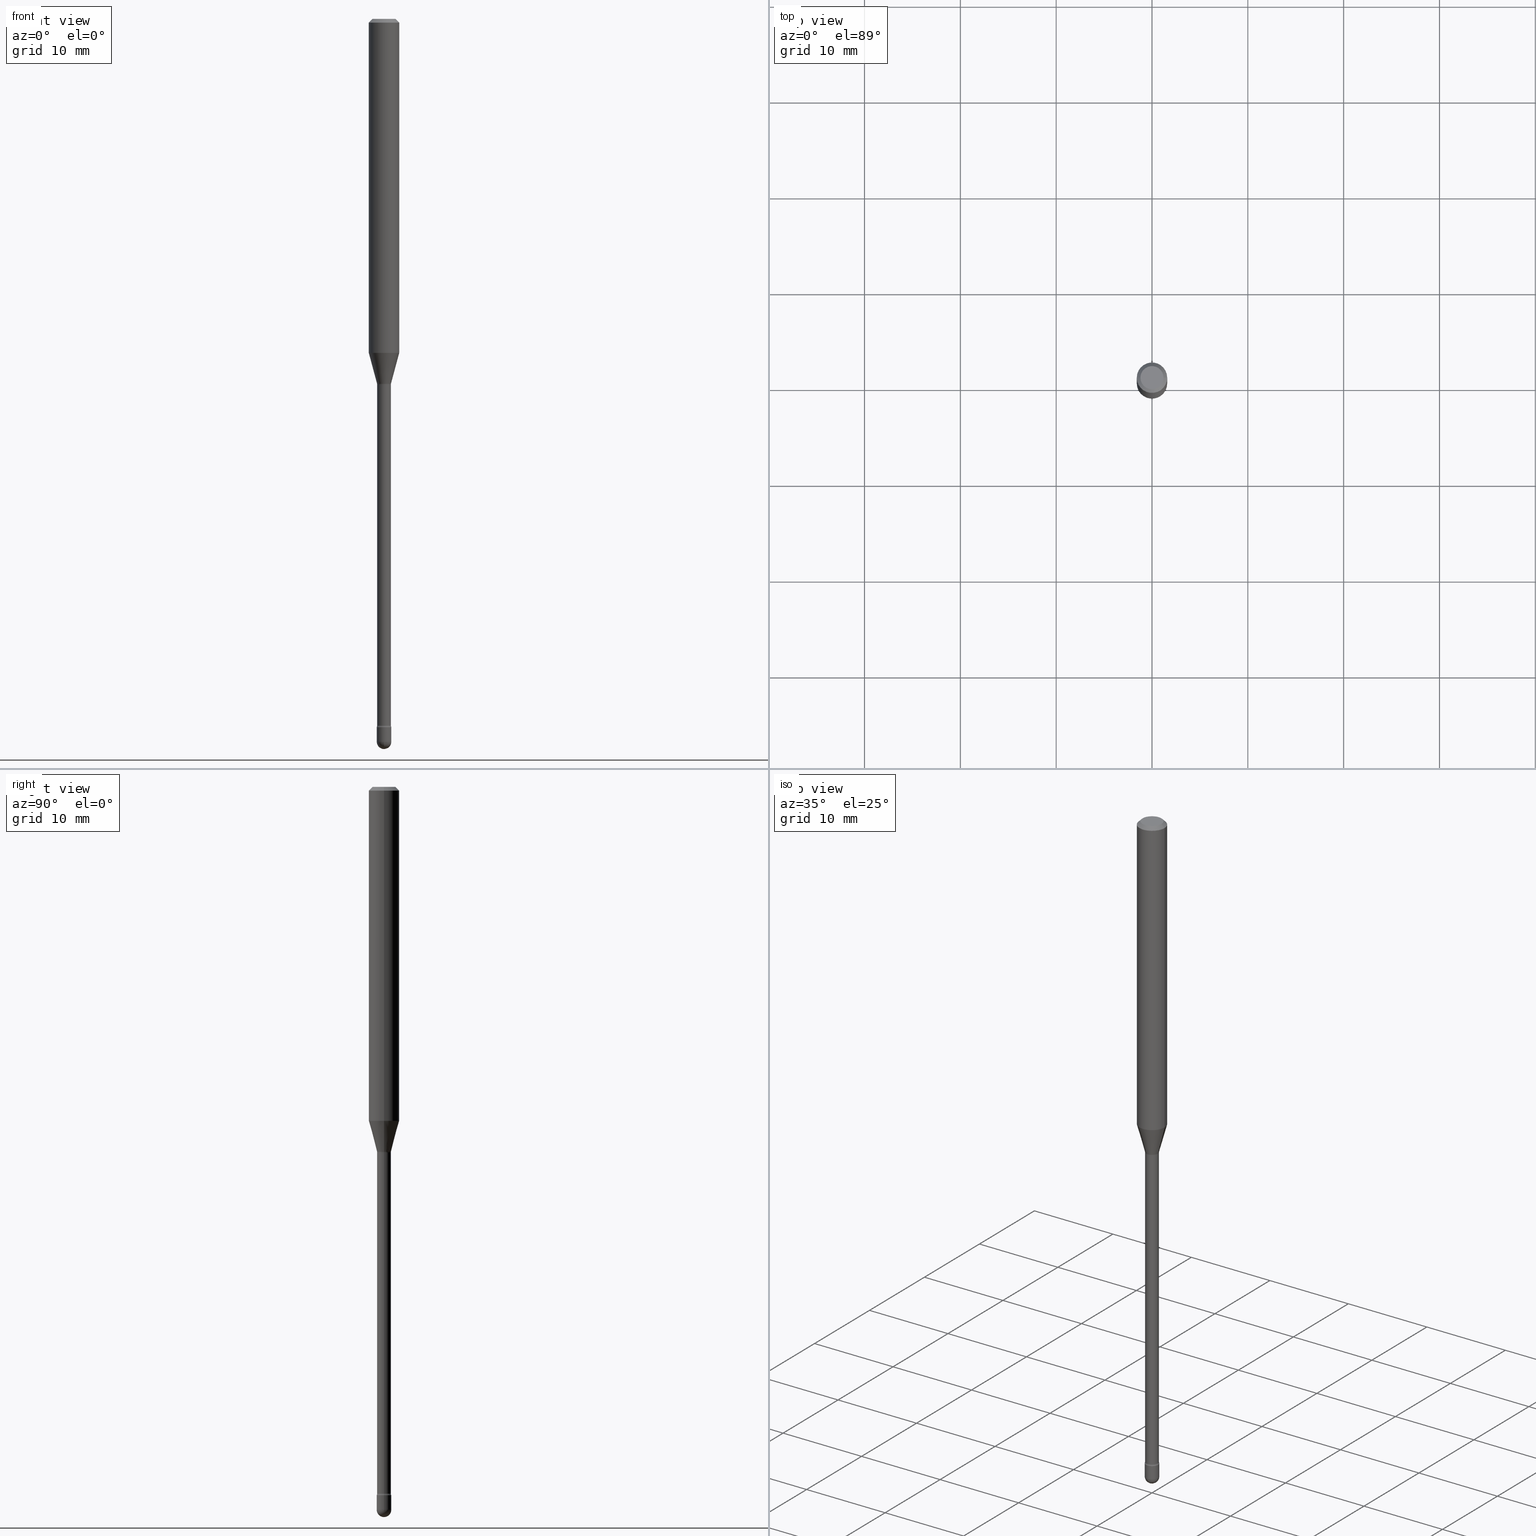
[diagram: canonical four-view strip — front | top / right | iso, engineering-drawing reading convention]
A machine part, canonical four-view strip (front | top / right | iso — engineering-drawing reading convention). The complete STEP part file that produces these views, byte-faithful:
ISO-10303-21;
HEADER;
FILE_DESCRIPTION (( 'STEP AP203' ),
    '1' );
FILE_NAME ('09493.STEP',
    '2024-04-09T23:50:04',
    ( '' ),
    ( '' ),
    'SwSTEP 2.0',
    'SolidWorks 2023',
    '' );
FILE_SCHEMA (( 'CONFIG_CONTROL_DESIGN' ));
ENDSEC;

DATA;
#1 = DATE_TIME_ROLE ( 'creation_date' ) ;
#2 = ADVANCED_FACE ( 'NONE', ( #346 ), #519, .T. ) ;
#3 = ORIENTED_EDGE ( 'NONE', *, *, #296, .F. ) ;
#4 = COORDINATED_UNIVERSAL_TIME_OFFSET ( 5, 0, .BEHIND. ) ;
#5 = CARTESIAN_POINT ( 'NONE',  ( -1.169113584055446105E-44, 1.669184350826100908E-30, 4.780733988912460139E-16 ) ) ;
#6 = DIRECTION ( 'NONE',  ( 0.000000000000000000, 0.000000000000000000, 1.000000000000000000 ) ) ;
#7 = LOCAL_TIME ( 19, 50, 4.000000000000000000, #352 ) ;
#8 = CIRCLE ( 'NONE', #225, 0.02819999999999999590 ) ;
#9 = CARTESIAN_POINT ( 'NONE',  ( 2.023552857353652888E-45, -2.889097183224559242E-31, -8.274703207154537794E-17 ) ) ;
#10 = DATE_AND_TIME ( #312, #106 ) ;
#11 = CYLINDRICAL_SURFACE ( 'NONE', #300, 0.02820000000000010693 ) ;
#12 = EDGE_CURVE ( 'NONE', #419, #128, #482, .T. ) ;
#13 = VECTOR ( 'NONE', #485, 39.37007874015747433 ) ;
#14 = APPROVAL_PERSON_ORGANIZATION ( #479, #63, #401 ) ;
#15 = CARTESIAN_POINT ( 'NONE',  ( 7.263042354369856275E-29, -1.036969957636414298E-14, -2.970000000000000195 ) ) ;
#16 = LINE ( 'NONE', #408, #407 ) ;
#17 = CARTESIAN_POINT ( 'NONE',  ( -2.131628207279573248E-16, -0.03000000000001035866, -2.970000000000000195 ) ) ;
#18 = ADVANCED_FACE ( 'NONE', ( #143 ), #37, .F. ) ;
#19 = CARTESIAN_POINT ( 'NONE',  ( 0.04749999999999999362, -4.035134999187581581E-16, -8.274703207154280181E-17 ) ) ;
#20 = CARTESIAN_POINT ( 'NONE',  ( -0.03000000000000000583, -1.005179231547081937E-14, -2.970000000000000195 ) ) ;
#21 = DIRECTION ( 'NONE',  ( 1.000000000000000000, -6.982962677686268288E-15, 0.000000000000000000 ) ) ;
#22 = LOCAL_TIME ( 19, 50, 4.000000000000000000, #180 ) ;
#23 = DIRECTION ( 'NONE',  ( -2.445468806185136597E-29, 3.491481338843145583E-15, 1.000000000000000000 ) ) ;
#24 = AXIS2_PLACEMENT_3D ( 'NONE', #209, #297, #75 ) ;
#25 = ORIENTED_EDGE ( 'NONE', *, *, #296, .T. ) ;
#26 = AXIS2_PLACEMENT_3D ( 'NONE', #365, #489, #445 ) ;
#27 = CARTESIAN_POINT ( 'NONE',  ( 2.094888803306591418E-16, 0.02999999999998984035, -2.910000000000000586 ) ) ;
#28 = CARTESIAN_POINT ( 'NONE',  ( 3.355160354805540645E-29, -4.790279777031446452E-15, -1.371990657300387939 ) ) ;
#29 = ORIENTED_EDGE ( 'NONE', *, *, #509, .T. ) ;
#30 = CARTESIAN_POINT ( 'NONE',  ( 3.668203209277725232E-31, -5.237222008264747365E-17, -0.01500000000000008271 ) ) ;
#31 = DIRECTION ( 'NONE',  ( 6.982962677686265922E-15, 1.000000000000000000, 0.000000000000000000 ) ) ;
#32 = VERTEX_POINT ( 'NONE', #20 ) ;
#33 = DIMENSIONAL_EXPONENTS ( 1.000000000000000000, 0.000000000000000000, 0.000000000000000000, 0.000000000000000000, 0.000000000000000000, 0.000000000000000000, 0.000000000000000000 ) ;
#34 = DIRECTION ( 'NONE',  ( -2.438088387897960049E-29, 3.491481338843145188E-15, 1.000000000000000000 ) ) ;
#35 = EDGE_CURVE ( 'NONE', #128, #419, #107, .T. ) ;
#36 = ORIENTED_EDGE ( 'NONE', *, *, #429, .T. ) ;
#37 = TOROIDAL_SURFACE ( 'NONE', #205, 0.04320000000000000229, 0.01500000000000002720 ) ;
#38 = CIRCLE ( 'NONE', #514, 0.02819999999999999590 ) ;
#39 = DIRECTION ( 'NONE',  ( -2.445468806185136877E-29, 3.491481338843145188E-15, 1.000000000000000000 ) ) ;
#40 = DIRECTION ( 'NONE',  ( -2.445468806185136597E-29, 3.491481338843145583E-15, 1.000000000000000000 ) ) ;
#41 = EDGE_LOOP ( 'NONE', ( #151, #501, #510, #551 ) ) ;
#42 = ADVANCED_FACE ( 'NONE', ( #109 ), #357, .T. ) ;
#43 = CARTESIAN_POINT ( 'NONE',  ( -0.06250000000000000000, -1.977236788706983558E-15, -0.01500000000000008271 ) ) ;
#44 = ORIENTED_EDGE ( 'NONE', *, *, #144, .T. ) ;
#45 = EDGE_CURVE ( 'NONE', #469, #124, #466, .T. ) ;
#46 = FACE_OUTER_BOUND ( 'NONE', #179, .T. ) ;
#47 = APPROVAL_PERSON_ORGANIZATION ( #132, #437, #432 ) ;
#48 = CALENDAR_DATE ( 2024, 9, 4 ) ;
#49 = AXIS2_PLACEMENT_3D ( 'NONE', #425, #550, #71 ) ;
#50 = EDGE_CURVE ( 'NONE', #419, #172, #483, .T. ) ;
#51 = CALENDAR_DATE ( 2024, 9, 4 ) ;
#52 = ORIENTED_EDGE ( 'NONE', *, *, #228, .F. ) ;
#53 = ADVANCED_BREP_SHAPE_REPRESENTATION ( '09493', ( #515, #511, #358 ), #288 ) ;
#54 = PERSON_AND_ORGANIZATION ( #379, #262 ) ;
#55 = ORIENTED_EDGE ( 'NONE', *, *, #35, .F. ) ;
#56 = DATE_TIME_ROLE ( 'classification_date' ) ;
#57 = CIRCLE ( 'NONE', #533, 0.03000000000000000583 ) ;
#58 = DIRECTION ( 'NONE',  ( 1.000000000000000000, -6.982962677686274599E-15, 4.883557194083115143E-29 ) ) ;
#59 = ADVANCED_FACE ( 'NONE', ( #61 ), #177, .F. ) ;
#60 = FACE_OUTER_BOUND ( 'NONE', #220, .T. ) ;
#61 = FACE_OUTER_BOUND ( 'NONE', #195, .T. ) ;
#62 = DIRECTION ( 'NONE',  ( 1.000000000000000000, -6.982962677686268288E-15, 0.000000000000000000 ) ) ;
#63 = APPROVAL ( #267, 'UNSPECIFIED' ) ;
#64 = CIRCLE ( 'NONE', #377, 0.02999999999999997807 ) ;
#65 = DIRECTION ( 'NONE',  ( 1.000000000000000000, -6.982962677686258033E-15, 0.000000000000000000 ) ) ;
#66 = DIRECTION ( 'NONE',  ( 1.000000000000000000, -6.982962677686266711E-15, 0.000000000000000000 ) ) ;
#67 = DIRECTION ( 'NONE',  ( -2.445468806185136597E-29, 3.491481338843145583E-15, 1.000000000000000000 ) ) ;
#68 = LINE ( 'NONE', #277, #542 ) ;
#69 = DIRECTION ( 'NONE',  ( 1.000000000000000000, -6.982962677686262766E-15, 0.000000000000000000 ) ) ;
#70 = FACE_OUTER_BOUND ( 'NONE', #167, .T. ) ;
#71 = DIRECTION ( 'NONE',  ( 1.000000000000000000, -6.982962677686280121E-15, 0.000000000000000000 ) ) ;
#72 = CIRCLE ( 'NONE', #456, 0.02820000000000021795 ) ;
#73 = EDGE_LOOP ( 'NONE', ( #265, #36 ) ) ;
#74 = CIRCLE ( 'NONE', #84, 0.02999999999999999889 ) ;
#75 = DIRECTION ( 'NONE',  ( -1.000000000000000000, 6.982962677686265922E-15, -4.876176775795935793E-29 ) ) ;
#76 = EDGE_LOOP ( 'NONE', ( #330, #459, #212, #476 ) ) ;
#77 = CARTESIAN_POINT ( 'NONE',  ( -0.06250000000000000000, 4.440892098500642925E-16, 4.780733988912429571E-16 ) ) ;
#78 = ADVANCED_FACE ( 'NONE', ( #535 ), #492, .T. ) ;
#79 = DIRECTION ( 'NONE',  ( -2.445468806185136597E-29, 3.491481338843145583E-15, 1.000000000000000000 ) ) ;
#80 = VERTEX_POINT ( 'NONE', #531 ) ;
#81 = DIRECTION ( 'NONE',  ( -2.445468806185136597E-29, 3.491481338843145583E-15, 1.000000000000000000 ) ) ;
#82 = EDGE_CURVE ( 'NONE', #116, #303, #140, .T. ) ;
#83 = ORIENTED_EDGE ( 'NONE', *, *, #536, .F. ) ;
#84 = AXIS2_PLACEMENT_3D ( 'NONE', #463, #423, #340 ) ;
#85 = CARTESIAN_POINT ( 'NONE',  ( -1.169113584055446105E-44, 1.669184350826100908E-30, 4.780733988912460139E-16 ) ) ;
#86 = ORIENTED_EDGE ( 'NONE', *, *, #402, .F. ) ;
#87 = DIRECTION ( 'NONE',  ( 1.000000000000000000, -6.982962677686266711E-15, 0.000000000000000000 ) ) ;
#88 = ORIENTED_EDGE ( 'NONE', *, *, #564, .F. ) ;
#89 = FACE_OUTER_BOUND ( 'NONE', #119, .T. ) ;
#90 = EDGE_LOOP ( 'NONE', ( #527, #517, #507, #374, #559 ) ) ;
#91 = AXIS2_PLACEMENT_3D ( 'NONE', #458, #79, #498 ) ;
#92 = CC_DESIGN_APPROVAL ( #63, ( #495 ) ) ;
#93 = VERTEX_POINT ( 'NONE', #17 ) ;
#94 = ORIENTED_EDGE ( 'NONE', *, *, #392, .T. ) ;
#95 = CC_DESIGN_DATE_AND_TIME_ASSIGNMENT ( #10, #1, ( #495 ) ) ;
#96 = CARTESIAN_POINT ( 'NONE',  ( 0.02871111260566397427, -5.431050641611305641E-15, -1.498092501787273267 ) ) ;
#97 = PERSON_AND_ORGANIZATION ( #379, #262 ) ;
#98 = AXIS2_PLACEMENT_3D ( 'NONE', #185, #413, #359 ) ;
#99 = DIRECTION ( 'NONE',  ( 1.000000000000000000, -6.982962677686266711E-15, 0.000000000000000000 ) ) ;
#100 = SECURITY_CLASSIFICATION_LEVEL ( 'unclassified' ) ;
#101 = DIRECTION ( 'NONE',  ( 1.000000000000000000, -6.982962677686267499E-15, 4.884662768193073002E-29 ) ) ;
#102 = EDGE_CURVE ( 'NONE', #32, #93, #215, .T. ) ;
#103 = DIRECTION ( 'NONE',  ( -2.445468806185136597E-29, 3.491481338843145583E-15, 1.000000000000000000 ) ) ;
#104 = CARTESIAN_POINT ( 'NONE',  ( 0.02871111260566397427, -5.431050641611305641E-15, -1.498092501787273267 ) ) ;
#105 = FACE_OUTER_BOUND ( 'NONE', #566, .T. ) ;
#106 = LOCAL_TIME ( 19, 50, 4.000000000000000000, #530 ) ;
#107 = CIRCLE ( 'NONE', #192, 0.04749999999999999362 ) ;
#108 = AXIS2_PLACEMENT_3D ( 'NONE', #544, #161, #361 ) ;
#109 = FACE_OUTER_BOUND ( 'NONE', #76, .T. ) ;
#110 = DIRECTION ( 'NONE',  ( -2.445468806185136597E-29, 3.491481338843145583E-15, 1.000000000000000000 ) ) ;
#111 = DIRECTION ( 'NONE',  ( 1.000000000000000000, -6.982962677686266711E-15, 0.000000000000000000 ) ) ;
#112 = CARTESIAN_POINT ( 'NONE',  ( -0.04320000000000000229, -4.937162479994433294E-15, -1.501974787463811190 ) ) ;
#113 = CARTESIAN_POINT ( 'NONE',  ( 7.263042354369856275E-29, -1.036969957636414298E-14, -2.970000000000000195 ) ) ;
#114 = EDGE_LOOP ( 'NONE', ( #455, #55, #426, #545 ) ) ;
#115 = CIRCLE ( 'NONE', #91, 0.03000000000000000583 ) ;
#116 = VERTEX_POINT ( 'NONE', #96 ) ;
#117 = DIRECTION ( 'NONE',  ( 1.000000000000000000, -6.982962677686269866E-15, 4.883557194083114583E-29 ) ) ;
#118 = CARTESIAN_POINT ( 'NONE',  ( -0.06250000000000000000, 3.840629472727441958E-16, -0.01500000000000008271 ) ) ;
#119 = EDGE_LOOP ( 'NONE', ( #380, #522, #304, #165 ) ) ;
#120 = CARTESIAN_POINT ( 'NONE',  ( 0.02820000000000010693, -1.969195475107518148E-16, 4.780733988912474930E-16 ) ) ;
#121 = EDGE_LOOP ( 'NONE', ( #342, #371, #29, #248, #548 ) ) ;
#122 = DIRECTION ( 'NONE',  ( 1.000000000000000000, -6.982962677686280121E-15, 0.000000000000000000 ) ) ;
#123 = SECURITY_CLASSIFICATION ( '', '', #100 ) ;
#124 = VERTEX_POINT ( 'NONE', #444 ) ;
#125 = AXIS2_PLACEMENT_3D ( 'NONE', #508, #420, #122 ) ;
#126 = DIRECTION ( 'NONE',  ( 1.000000000000000000, -6.982962677686255667E-15, 0.000000000000000000 ) ) ;
#127 = CC_DESIGN_PERSON_AND_ORGANIZATION_ASSIGNMENT ( #97, #131, ( #495 ) ) ;
#128 = VERTEX_POINT ( 'NONE', #230 ) ;
#129 = LINE ( 'NONE', #120, #397 ) ;
#130 = EDGE_LOOP ( 'NONE', ( #333, #197, #307, #310 ) ) ;
#131 = PERSON_AND_ORGANIZATION_ROLE ( 'creator' ) ;
#132 = PERSON_AND_ORGANIZATION ( #379, #262 ) ;
#133 = CIRCLE ( 'NONE', #158, 0.01499999999999995087 ) ;
#134 = AXIS2_PLACEMENT_3D ( 'NONE', #249, #295, #292 ) ;
#135 = VERTEX_POINT ( 'NONE', #442 ) ;
#136 = PERSON_AND_ORGANIZATION ( #379, #262 ) ;
#137 = ADVANCED_FACE ( 'NONE', ( #60 ), #11, .T. ) ;
#138 = VERTEX_POINT ( 'NONE', #187 ) ;
#139 =( NAMED_UNIT ( * ) PLANE_ANGLE_UNIT ( ) SI_UNIT ( $, .RADIAN. ) );
#140 = LINE ( 'NONE', #104, #13 ) ;
#141 = CALENDAR_DATE ( 2024, 9, 4 ) ;
#142 = AXIS2_PLACEMENT_3D ( 'NONE', #112, #537, #283 ) ;
#143 = FACE_OUTER_BOUND ( 'NONE', #130, .T. ) ;
#144 = EDGE_CURVE ( 'NONE', #201, #138, #268, .T. ) ;
#145 = CARTESIAN_POINT ( 'NONE',  ( -0.02820000000000021795, -9.941005046784985049E-15, -2.902875394747778337 ) ) ;
#146 = CLOSED_SHELL ( 'NONE', ( #539, #305, #556, #42, #243 ) ) ;
#147 = AXIS2_PLACEMENT_3D ( 'NONE', #453, #543, #62 ) ;
#148 = DIRECTION ( 'NONE',  ( 2.445468806185136597E-29, -3.491481338843145583E-15, -1.000000000000000000 ) ) ;
#149 = DIRECTION ( 'NONE',  ( -2.445468806185136877E-29, 3.491481338843145188E-15, 1.000000000000000000 ) ) ;
#150 = EDGE_CURVE ( 'NONE', #169, #254, #72, .T. ) ;
#151 = ORIENTED_EDGE ( 'NONE', *, *, #516, .F. ) ;
#152 = CARTESIAN_POINT ( 'NONE',  ( 0.02999999999999999889, -1.036969957636414298E-14, -2.910000000000000586 ) ) ;
#153 = EDGE_CURVE ( 'NONE', #480, #438, #235, .T. ) ;
#154 = FACE_OUTER_BOUND ( 'NONE', #291, .T. ) ;
#155 = ORIENTED_EDGE ( 'NONE', *, *, #404, .F. ) ;
#156 = CARTESIAN_POINT ( 'NONE',  ( 0.02819999999999999590, -5.441036489353549392E-15, -1.501974787463811190 ) ) ;
#157 = CARTESIAN_POINT ( 'NONE',  ( 0.04320000000000016882, -1.043699925742484396E-14, -2.902875394747778337 ) ) ;
#158 = AXIS2_PLACEMENT_3D ( 'NONE', #157, #558, #164 ) ;
#159 = AXIS2_PLACEMENT_3D ( 'NONE', #494, #191, #457 ) ;
#160 = ORIENTED_EDGE ( 'NONE', *, *, #497, .T. ) ;
#161 = DIRECTION ( 'NONE',  ( 7.105427357601001859E-15, 1.000000000000000000, -3.491481338843145583E-15 ) ) ;
#162 = VERTEX_POINT ( 'NONE', #538 ) ;
#163 = CYLINDRICAL_SURFACE ( 'NONE', #326, 0.02820000000000010693 ) ;
#164 = DIRECTION ( 'NONE',  ( 1.000000000000000000, -6.982962677686291165E-15, 0.000000000000000000 ) ) ;
#165 = ORIENTED_EDGE ( 'NONE', *, *, #264, .F. ) ;
#166 = DIRECTION ( 'NONE',  ( -2.445468806185136877E-29, 3.491481338843145188E-15, 1.000000000000000000 ) ) ;
#167 = EDGE_LOOP ( 'NONE', ( #436, #337 ) ) ;
#168 = TOROIDAL_SURFACE ( 'NONE', #186, 0.04320000000000000229, 0.01500000000000002720 ) ;
#169 = VERTEX_POINT ( 'NONE', #145 ) ;
#170 = APPROVAL_STATUS ( 'not_yet_approved' ) ;
#171 = EDGE_CURVE ( 'NONE', #162, #32, #57, .T. ) ;
#172 = VERTEX_POINT ( 'NONE', #290 ) ;
#173 = APPROVAL_DATE_TIME ( #391, #286 ) ;
#174 = ORIENTED_EDGE ( 'NONE', *, *, #279, .F. ) ;
#175 = DIRECTION ( 'NONE',  ( 1.000000000000000000, 0.000000000000000000, 0.000000000000000000 ) ) ;
#176 = CC_DESIGN_PERSON_AND_ORGANIZATION_ASSIGNMENT ( #347, #439, ( #275 ) ) ;
#177 = TOROIDAL_SURFACE ( 'NONE', #525, 0.04320000000000016882, 0.01499999999999995087 ) ;
#178 = AXIS2_PLACEMENT_3D ( 'NONE', #27, #546, #233 ) ;
#179 = EDGE_LOOP ( 'NONE', ( #294, #339, #160, #3 ) ) ;
#180 = COORDINATED_UNIVERSAL_TIME_OFFSET ( 5, 0, .BEHIND. ) ;
#181 = DIRECTION ( 'NONE',  ( 1.000000000000000000, -6.982962677686269866E-15, 4.883557194083114583E-29 ) ) ;
#182 = MECHANICAL_CONTEXT ( 'NONE', #259, 'mechanical' ) ;
#183 = DIRECTION ( 'NONE',  ( 1.000000000000000000, -6.982962677686267499E-15, 4.947382444955185591E-29 ) ) ;
#184 = CIRCLE ( 'NONE', #475, 0.06250000000000000000 ) ;
#185 = CARTESIAN_POINT ( 'NONE',  ( -1.169113584055446105E-44, 1.669184350826100908E-30, 4.780733988912460139E-16 ) ) ;
#186 = AXIS2_PLACEMENT_3D ( 'NONE', #384, #213, #117 ) ;
#187 = CARTESIAN_POINT ( 'NONE',  ( -0.06250000000000000000, -4.346190567181383047E-15, -1.371990657300387939 ) ) ;
#188 = DIRECTION ( 'NONE',  ( -2.445468806185136877E-29, 3.491481338843145188E-15, 1.000000000000000000 ) ) ;
#189 = EDGE_CURVE ( 'NONE', #116, #201, #260, .T. ) ;
#190 = DIRECTION ( 'NONE',  ( -2.445468806185136597E-29, 3.491481338843145583E-15, 1.000000000000000000 ) ) ;
#191 = DIRECTION ( 'NONE',  ( -2.445468806185136597E-29, 3.491481338843145583E-15, 1.000000000000000000 ) ) ;
#192 = AXIS2_PLACEMENT_3D ( 'NONE', #400, #190, #101 ) ;
#193 = AXIS2_PLACEMENT_3D ( 'NONE', #460, #81, #255 ) ;
#194 = DIRECTION ( 'NONE',  ( 1.000000000000000000, -6.982962677686262766E-15, 0.000000000000000000 ) ) ;
#195 = EDGE_LOOP ( 'NONE', ( #207, #415, #422, #472 ) ) ;
#196 = CARTESIAN_POINT ( 'NONE',  ( 3.673032490419300829E-29, -5.244116941842796689E-15, -1.501974787463811190 ) ) ;
#197 = ORIENTED_EDGE ( 'NONE', *, *, #189, .F. ) ;
#198 = DIRECTION ( 'NONE',  ( 1.000000000000000000, -6.982962677686266711E-15, 4.876176775795935793E-29 ) ) ;
#199 = CARTESIAN_POINT ( 'NONE',  ( 0.06250000000000000000, -5.226714944386837332E-15, -1.371990657300387939 ) ) ;
#200 = EDGE_CURVE ( 'NONE', #201, #116, #552, .T. ) ;
#201 = VERTEX_POINT ( 'NONE', #414 ) ;
#202 = CARTESIAN_POINT ( 'NONE',  ( 0.04320000000000000229, -5.545780929518843550E-15, -1.501974787463811190 ) ) ;
#203 = APPROVAL_PERSON_ORGANIZATION ( #477, #286, #224 ) ;
#204 = DIRECTION ( 'NONE',  ( -2.445468806185136597E-29, 3.491481338843145583E-15, 1.000000000000000000 ) ) ;
#205 = AXIS2_PLACEMENT_3D ( 'NONE', #226, #411, #181 ) ;
#206 = AXIS2_PLACEMENT_3D ( 'NONE', #560, #338, #198 ) ;
#207 = ORIENTED_EDGE ( 'NONE', *, *, #320, .F. ) ;
#208 = DIRECTION ( 'NONE',  ( -1.000000000000000000, 6.982962677686266711E-15, 0.000000000000000000 ) ) ;
#209 = CARTESIAN_POINT ( 'NONE',  ( 3.316907271900976096E-16, 0.04749999999999999362, 3.181781981480094004E-17 ) ) ;
#210 = ORIENTED_EDGE ( 'NONE', *, *, #421, .T. ) ;
#211 = CARTESIAN_POINT ( 'NONE',  ( 7.116314225998749245E-29, -1.016021069603355467E-14, -2.910000000000000586 ) ) ;
#212 = ORIENTED_EDGE ( 'NONE', *, *, #214, .F. ) ;
#213 = DIRECTION ( 'NONE',  ( -2.445468806185136597E-29, 3.491481338843145583E-15, 1.000000000000000000 ) ) ;
#214 = EDGE_CURVE ( 'NONE', #480, #162, #115, .T. ) ;
#215 = CIRCLE ( 'NONE', #541, 0.03000000000000000583 ) ;
#216 = EDGE_LOOP ( 'NONE', ( #417, #431, #353, #393 ) ) ;
#217 = APPROVAL_DATE_TIME ( #394, #63 ) ;
#218 = ORIENTED_EDGE ( 'NONE', *, *, #412, .T. ) ;
#219 = PERSON_AND_ORGANIZATION ( #379, #262 ) ;
#220 = EDGE_LOOP ( 'NONE', ( #218, #210, #86, #241 ) ) ;
#221 = CARTESIAN_POINT ( 'NONE',  ( 0.000000000000000000, 0.000000000000000000, 0.000000000000000000 ) ) ;
#222 = AXIS2_PLACEMENT_3D ( 'NONE', #30, #343, #208 ) ;
#223 = ORIENTED_EDGE ( 'NONE', *, *, #50, .T. ) ;
#224 = APPROVAL_ROLE ( '' ) ;
#225 = AXIS2_PLACEMENT_3D ( 'NONE', #451, #103, #325 ) ;
#226 = CARTESIAN_POINT ( 'NONE',  ( 3.673032490419300829E-29, -5.244116941842796689E-15, -1.501974787463811190 ) ) ;
#227 = APPLICATION_PROTOCOL_DEFINITION ( 'international standard', 'config_control_design', 1994, #289 ) ;
#228 = EDGE_CURVE ( 'NONE', #303, #138, #306, .T. ) ;
#229 = DIRECTION ( 'NONE',  ( 1.000000000000000000, -6.982962677686268288E-15, 0.000000000000000000 ) ) ;
#230 = CARTESIAN_POINT ( 'NONE',  ( -0.04749999999999999362, 3.578768372314208041E-16, -8.274703207154778150E-17 ) ) ;
#231 = PRODUCT_DEFINITION_FORMATION_WITH_SPECIFIED_SOURCE ( 'ANY', '', #275, .NOT_KNOWN. ) ;
#232 = VECTOR ( 'NONE', #367, 39.37007874015748143 ) ;
#233 = DIRECTION ( 'NONE',  ( 1.000000000000000000, -6.982962677686265922E-15, 4.876176775795935793E-29 ) ) ;
#234 = CIRCLE ( 'NONE', #142, 0.01500000000000002720 ) ;
#235 = LINE ( 'NONE', #409, #532 ) ;
#236 = CC_DESIGN_DATE_AND_TIME_ASSIGNMENT ( #389, #56, ( #123 ) ) ;
#237 = DIRECTION ( 'NONE',  ( -2.445468806185136597E-29, 3.491481338843145583E-15, 1.000000000000000000 ) ) ;
#238 = FACE_OUTER_BOUND ( 'NONE', #121, .T. ) ;
#239 = DIRECTION ( 'NONE',  ( -2.445468806185136877E-29, 3.491481338843145188E-15, 1.000000000000000000 ) ) ;
#240 = AXIS2_PLACEMENT_3D ( 'NONE', #317, #280, #403 ) ;
#241 = ORIENTED_EDGE ( 'NONE', *, *, #497, .F. ) ;
#242 = FACE_OUTER_BOUND ( 'NONE', #256, .T. ) ;
#243 = ADVANCED_FACE ( 'NONE', ( #238 ), #252, .T. ) ;
#244 = DIRECTION ( 'NONE',  ( -2.445468806185136597E-29, 3.491481338843145583E-15, 1.000000000000000000 ) ) ;
#245 = VERTEX_POINT ( 'NONE', #373 ) ;
#246 = FACE_OUTER_BOUND ( 'NONE', #506, .T. ) ;
#247 = DIRECTION ( 'NONE',  ( 1.000000000000000000, -6.982962677686278543E-15, 0.000000000000000000 ) ) ;
#248 = ORIENTED_EDGE ( 'NONE', *, *, #153, .T. ) ;
#249 = CARTESIAN_POINT ( 'NONE',  ( 7.263042354369856275E-29, -1.036969957636414298E-14, -2.970000000000000195 ) ) ;
#250 = CC_DESIGN_APPROVAL ( #286, ( #123 ) ) ;
#251 = ADVANCED_FACE ( 'NONE', ( #332 ), #452, .F. ) ;
#252 = CYLINDRICAL_SURFACE ( 'NONE', #433, 0.03000000000000000583 ) ;
#253 = AXIS2_PLACEMENT_3D ( 'NONE', #281, #237, #21 ) ;
#254 = VERTEX_POINT ( 'NONE', #382 ) ;
#255 = DIRECTION ( 'NONE',  ( 1.000000000000000000, -6.982962677686266711E-15, 0.000000000000000000 ) ) ;
#256 = EDGE_LOOP ( 'NONE', ( #390, #388, #83, #155 ) ) ;
#257 = EDGE_CURVE ( 'NONE', #254, #469, #133, .T. ) ;
#258 = DIRECTION ( 'NONE',  ( -2.445468806185136597E-29, 3.491481338843145583E-15, 1.000000000000000000 ) ) ;
#259 = APPLICATION_CONTEXT ( 'configuration controlled 3d designs of mechanical parts and assemblies' ) ;
#260 = CIRCLE ( 'NONE', #287, 0.02871111260566397427 ) ;
#261 = ORIENTED_EDGE ( 'NONE', *, *, #200, .F. ) ;
#262 = ORGANIZATION ( 'UNSPECIFIED', 'UNSPECIFIED', '' ) ;
#263 = CALENDAR_DATE ( 2024, 9, 4 ) ;
#264 = EDGE_CURVE ( 'NONE', #138, #303, #184, .T. ) ;
#265 = ORIENTED_EDGE ( 'NONE', *, *, #370, .T. ) ;
#266 = ORIENTED_EDGE ( 'NONE', *, *, #189, .T. ) ;
#267 = APPROVAL_STATUS ( 'not_yet_approved' ) ;
#268 = LINE ( 'NONE', #362, #563 ) ;
#269 = VECTOR ( 'NONE', #319, 39.37007874015748143 ) ;
#270 = CIRCLE ( 'NONE', #253, 0.02999999999999999889 ) ;
#271 = DIRECTION ( 'NONE',  ( -2.445468806185136597E-29, 3.491481338843145583E-15, 1.000000000000000000 ) ) ;
#272 = DIRECTION ( 'NONE',  ( -2.445468806185136597E-29, 3.491481338843145583E-15, 1.000000000000000000 ) ) ;
#273 = EDGE_CURVE ( 'NONE', #128, #467, #496, .T. ) ;
#274 = CARTESIAN_POINT ( 'NONE',  ( 7.098891226098056422E-29, -1.013533526974879710E-14, -2.902875394747778337 ) ) ;
#275 = PRODUCT ( '09493', '09493', '', ( #182 ) ) ;
#276 = CARTESIAN_POINT ( 'NONE',  ( 7.098891226098056422E-29, -1.013533526974879710E-14, -2.902875394747778337 ) ) ;
#277 = CARTESIAN_POINT ( 'NONE',  ( -0.02820000000000010693, 2.003730514843506885E-16, 4.780733988912446334E-16 ) ) ;
#278 = CIRCLE ( 'NONE', #26, 0.02820000000000021795 ) ;
#279 = EDGE_CURVE ( 'NONE', #135, #162, #64, .T. ) ;
#280 = DIRECTION ( 'NONE',  ( -1.000000000000000000, 6.982962677686265922E-15, -4.883557194083112340E-29 ) ) ;
#281 = CARTESIAN_POINT ( 'NONE',  ( 7.116314225998749245E-29, -1.016021069603355467E-14, -2.910000000000000586 ) ) ;
#282 = CARTESIAN_POINT ( 'NONE',  ( 3.663538481900627525E-29, -5.230562013851106103E-15, -1.498092501787273267 ) ) ;
#283 = DIRECTION ( 'NONE',  ( -1.000000000000000000, 7.105427357600978193E-15, 0.000000000000000000 ) ) ;
#284 = DIRECTION ( 'NONE',  ( 1.000000000000000000, -6.982962677686280121E-15, 0.000000000000000000 ) ) ;
#285 = ORIENTED_EDGE ( 'NONE', *, *, #273, .F. ) ;
#286 = APPROVAL ( #170, 'UNSPECIFIED' ) ;
#287 = AXIS2_PLACEMENT_3D ( 'NONE', #282, #204, #284 ) ;
#288 =( GEOMETRIC_REPRESENTATION_CONTEXT ( 3 ) GLOBAL_UNCERTAINTY_ASSIGNED_CONTEXT ( ( #430 ) ) GLOBAL_UNIT_ASSIGNED_CONTEXT ( ( #554, #139, #481 ) ) REPRESENTATION_CONTEXT ( 'NONE', 'WORKASPACE' ) );
#289 = APPLICATION_CONTEXT ( 'configuration controlled 3d designs of mechanical parts and assemblies' ) ;
#290 = CARTESIAN_POINT ( 'NONE',  ( 0.06250000000000000000, -4.888073874380391431E-16, -0.01500000000000008271 ) ) ;
#291 = EDGE_LOOP ( 'NONE', ( #174, #499, #302, #529 ) ) ;
#292 = DIRECTION ( 'NONE',  ( -7.105427357601001070E-15, -1.000000000000000000, 0.000000000000000000 ) ) ;
#293 = DIRECTION ( 'NONE',  ( -2.445468806185136597E-29, 3.491481338843145583E-15, 1.000000000000000000 ) ) ;
#294 = ORIENTED_EDGE ( 'NONE', *, *, #421, .F. ) ;
#295 = DIRECTION ( 'NONE',  ( -1.000000000000000000, 7.105427357601001070E-15, -4.926315508542082329E-29 ) ) ;
#296 = EDGE_CURVE ( 'NONE', #245, #561, #38, .T. ) ;
#297 = DIRECTION ( 'NONE',  ( 2.438088387897960049E-29, -3.491481338843145188E-15, -1.000000000000000000 ) ) ;
#298 = ORIENTED_EDGE ( 'NONE', *, *, #12, .T. ) ;
#299 = CARTESIAN_POINT ( 'NONE',  ( 3.668203209277725232E-31, -5.237222008264747365E-17, -0.01500000000000008271 ) ) ;
#300 = AXIS2_PLACEMENT_3D ( 'NONE', #327, #406, #183 ) ;
#301 = CIRCLE ( 'NONE', #134, 0.02999999999999997807 ) ;
#302 = ORIENTED_EDGE ( 'NONE', *, *, #102, .F. ) ;
#303 = VERTEX_POINT ( 'NONE', #199 ) ;
#304 = ORIENTED_EDGE ( 'NONE', *, *, #82, .T. ) ;
#305 = ADVANCED_FACE ( 'NONE', ( #154 ), #500, .T. ) ;
#306 = CIRCLE ( 'NONE', #364, 0.06250000000000000000 ) ;
#307 = ORIENTED_EDGE ( 'NONE', *, *, #564, .T. ) ;
#308 = VECTOR ( 'NONE', #381, 39.37007874015748143 ) ;
#309 = PERSON_AND_ORGANIZATION_ROLE ( 'design_supplier' ) ;
#310 = ORIENTED_EDGE ( 'NONE', *, *, #402, .T. ) ;
#311 = ORIENTED_EDGE ( 'NONE', *, *, #536, .T. ) ;
#312 = CALENDAR_DATE ( 2024, 9, 4 ) ;
#313 = CC_DESIGN_PERSON_AND_ORGANIZATION_ASSIGNMENT ( #219, #528, ( #123 ) ) ;
#314 = CARTESIAN_POINT ( 'NONE',  ( 7.098891226098056422E-29, -1.013533526974879710E-14, -2.902875394747778337 ) ) ;
#315 = PERSON_AND_ORGANIZATION_ROLE ( 'creator' ) ;
#316 = AXIS2_PLACEMENT_3D ( 'NONE', #202, #512, #126 ) ;
#317 = CARTESIAN_POINT ( 'NONE',  ( 7.263042354369856275E-29, -1.036969957636414298E-14, -2.970000000000000195 ) ) ;
#318 = CARTESIAN_POINT ( 'NONE',  ( 3.668203209277725232E-31, -5.237222008264747365E-17, -0.01500000000000008271 ) ) ;
#319 = DIRECTION ( 'NONE',  ( 0.7071067811865475727, -7.319954787623256045E-15, -0.7071067811865474617 ) ) ;
#320 = EDGE_CURVE ( 'NONE', #169, #124, #378, .T. ) ;
#321 = DIRECTION ( 'NONE',  ( 1.000000000000000000, -6.982962677686274599E-15, 4.883557194083115143E-29 ) ) ;
#322 = PRODUCT_DEFINITION_SHAPE ( 'NONE', 'NONE',  #495 ) ;
#323 = DIRECTION ( 'NONE',  ( -2.445468806185136597E-29, 3.491481338843145583E-15, 1.000000000000000000 ) ) ;
#324 = AXIS2_PLACEMENT_3D ( 'NONE', #355, #148, #487 ) ;
#325 = DIRECTION ( 'NONE',  ( 1.000000000000000000, -6.982962677686278543E-15, 0.000000000000000000 ) ) ;
#326 = AXIS2_PLACEMENT_3D ( 'NONE', #85, #504, #549 ) ;
#327 = CARTESIAN_POINT ( 'NONE',  ( -1.169113584055446105E-44, 1.669184350826100908E-30, 4.780733988912460139E-16 ) ) ;
#328 = DIRECTION ( 'NONE',  ( 6.982962677686265922E-15, 1.000000000000000000, 0.000000000000000000 ) ) ;
#329 = ADVANCED_FACE ( 'NONE', ( #105 ), #351, .T. ) ;
#330 = ORIENTED_EDGE ( 'NONE', *, *, #488, .F. ) ;
#331 = PLANE ( 'NONE',  #178 ) ;
#332 = FACE_OUTER_BOUND ( 'NONE', #383, .T. ) ;
#333 = ORIENTED_EDGE ( 'NONE', *, *, #392, .F. ) ;
#334 = FACE_OUTER_BOUND ( 'NONE', #114, .T. ) ;
#335 = LOCAL_TIME ( 19, 50, 4.000000000000000000, #520 ) ;
#336 = ADVANCED_FACE ( 'NONE', ( #242 ), #486, .T. ) ;
#337 = ORIENTED_EDGE ( 'NONE', *, *, #473, .F. ) ;
#338 = DIRECTION ( 'NONE',  ( -2.445468806185136597E-29, 3.491481338843145583E-15, 1.000000000000000000 ) ) ;
#339 = ORIENTED_EDGE ( 'NONE', *, *, #150, .T. ) ;
#340 = DIRECTION ( 'NONE',  ( 1.000000000000000000, -6.982962677686268288E-15, 0.000000000000000000 ) ) ;
#341 = EDGE_CURVE ( 'NONE', #467, #172, #441, .T. ) ;
#342 = ORIENTED_EDGE ( 'NONE', *, *, #478, .F. ) ;
#343 = DIRECTION ( 'NONE',  ( 2.445468806185136597E-29, -3.491481338843145583E-15, -1.000000000000000000 ) ) ;
#344 = AXIS2_PLACEMENT_3D ( 'NONE', #555, #418, #31 ) ;
#345 = LINE ( 'NONE', #468, #434 ) ;
#346 = FACE_OUTER_BOUND ( 'NONE', #41, .T. ) ;
#347 = PERSON_AND_ORGANIZATION ( #379, #262 ) ;
#348 = ORIENTED_EDGE ( 'NONE', *, *, #35, .T. ) ;
#349 = APPROVAL_DATE_TIME ( #356, #437 ) ;
#350 = DIRECTION ( 'NONE',  ( -2.445468806185136597E-29, 3.491481338843145583E-15, 1.000000000000000000 ) ) ;
#351 = CONICAL_SURFACE ( 'NONE', #159, 0.02871111260566397427, 0.2617993877991500740 ) ;
#352 = COORDINATED_UNIVERSAL_TIME_OFFSET ( 5, 0, .BEHIND. ) ;
#353 = ORIENTED_EDGE ( 'NONE', *, *, #473, .T. ) ;
#354 = ADVANCED_FACE ( 'NONE', ( #369 ), #553, .F. ) ;
#355 = CARTESIAN_POINT ( 'NONE',  ( 3.668203209277725232E-31, -5.237222008264747365E-17, -0.01500000000000008271 ) ) ;
#356 = DATE_AND_TIME ( #141, #7 ) ;
#357 = SPHERICAL_SURFACE ( 'NONE', #240, 0.02999999999999997807 ) ;
#358 = AXIS2_PLACEMENT_3D ( 'NONE', #221, #6, #175 ) ;
#359 = DIRECTION ( 'NONE',  ( 1.000000000000000000, -6.982962677686266711E-15, 4.852736867747366207E-29 ) ) ;
#360 = DIRECTION ( 'NONE',  ( -0.2588190451025213501, 5.211531920934551042E-15, 0.9659258262890682012 ) ) ;
#361 = DIRECTION ( 'NONE',  ( -1.000000000000000000, 7.105427357601014480E-15, 0.000000000000000000 ) ) ;
#362 = CARTESIAN_POINT ( 'NONE',  ( -0.02871111260566397427, -5.026557288875657723E-15, -1.498092501787273267 ) ) ;
#363 = CARTESIAN_POINT ( 'NONE',  ( 7.116314225998749245E-29, -1.016021069603355467E-14, -2.910000000000000586 ) ) ;
#364 = AXIS2_PLACEMENT_3D ( 'NONE', #28, #293, #69 ) ;
#365 = CARTESIAN_POINT ( 'NONE',  ( 7.098891226098056422E-29, -1.013533526974879710E-14, -2.902875394747778337 ) ) ;
#366 = CONICAL_SURFACE ( 'NONE', #125, 0.02871111260566397427, 0.2617993877991500740 ) ;
#367 = DIRECTION ( 'NONE',  ( -0.7071067811865475727, 2.468850131082257455E-15, -0.7071067811865474617 ) ) ;
#368 = ORIENTED_EDGE ( 'NONE', *, *, #12, .F. ) ;
#369 = FACE_OUTER_BOUND ( 'NONE', #216, .T. ) ;
#370 = EDGE_CURVE ( 'NONE', #438, #80, #270, .T. ) ;
#371 = ORIENTED_EDGE ( 'NONE', *, *, #102, .T. ) ;
#372 = PLANE ( 'NONE',  #526 ) ;
#373 = CARTESIAN_POINT ( 'NONE',  ( -0.02819999999999999590, -7.489353054311444679E-15, -1.501974787463811190 ) ) ;
#374 = ORIENTED_EDGE ( 'NONE', *, *, #153, .F. ) ;
#375 =( LENGTH_UNIT ( ) NAMED_UNIT ( * ) SI_UNIT ( $, .METRE. ) );
#376 = CC_DESIGN_SECURITY_CLASSIFICATION ( #123, ( #231 ) ) ;
#377 = AXIS2_PLACEMENT_3D ( 'NONE', #113, #462, #328 ) ;
#378 = CIRCLE ( 'NONE', #108, 0.01499999999999995087 ) ;
#379 = PERSON ( 'UNSPECIFIED', 'UNSPECIFIED', 'UNSPECIFIED', ('UNSPECIFIED'), ('UNSPECIFIED'), ('UNSPECIFIED') ) ;
#380 = ORIENTED_EDGE ( 'NONE', *, *, #144, .F. ) ;
#381 = DIRECTION ( 'NONE',  ( -2.445468806185136877E-29, 3.491481338843145188E-15, 1.000000000000000000 ) ) ;
#382 = CARTESIAN_POINT ( 'NONE',  ( 0.02820000000000021795, -1.033225481725955059E-14, -2.902875394747778337 ) ) ;
#383 = EDGE_LOOP ( 'NONE', ( #348, #298 ) ) ;
#384 = CARTESIAN_POINT ( 'NONE',  ( 3.673032490419300829E-29, -5.244116941842796689E-15, -1.501974787463811190 ) ) ;
#385 = ORIENTED_EDGE ( 'NONE', *, *, #82, .F. ) ;
#386 = CARTESIAN_POINT ( 'NONE',  ( 0.02999999999999997113, -1.036969957636414298E-14, -2.910000000000000586 ) ) ;
#387 = AXIS2_PLACEMENT_3D ( 'NONE', #9, #271, #440 ) ;
#388 = ORIENTED_EDGE ( 'NONE', *, *, #516, .T. ) ;
#389 = DATE_AND_TIME ( #48, #490 ) ;
#390 = ORIENTED_EDGE ( 'NONE', *, *, #228, .T. ) ;
#391 = DATE_AND_TIME ( #263, #22 ) ;
#392 = EDGE_CURVE ( 'NONE', #201, #245, #234, .T. ) ;
#393 = ORIENTED_EDGE ( 'NONE', *, *, #257, .F. ) ;
#394 = DATE_AND_TIME ( #51, #335 ) ;
#395 = CLOSED_SHELL ( 'NONE', ( #461, #137, #354, #78, #336, #329, #524, #2, #502, #251, #435, #59, #449, #18 ) ) ;
#396 = DIRECTION ( 'NONE',  ( 1.000000000000000000, -6.982962677686266711E-15, 4.852736867747366207E-29 ) ) ;
#397 = VECTOR ( 'NONE', #39, 39.37007874015748143 ) ;
#398 = APPLICATION_PROTOCOL_DEFINITION ( 'international standard', 'config_control_design', 1994, #259 ) ;
#399 = PRODUCT_RELATED_PRODUCT_CATEGORY ( 'detail', '', ( #275 ) ) ;
#400 = CARTESIAN_POINT ( 'NONE',  ( 2.023552857353652888E-45, -2.889097183224559242E-31, -8.274703207154537794E-17 ) ) ;
#401 = APPROVAL_ROLE ( '' ) ;
#402 = EDGE_CURVE ( 'NONE', #561, #245, #8, .T. ) ;
#403 = DIRECTION ( 'NONE',  ( 6.982962677686265922E-15, 1.000000000000000000, 0.000000000000000000 ) ) ;
#404 = EDGE_CURVE ( 'NONE', #303, #172, #16, .T. ) ;
#405 = CC_DESIGN_APPROVAL ( #437, ( #231 ) ) ;
#406 = DIRECTION ( 'NONE',  ( -2.445468806185136597E-29, 3.491481338843145583E-15, 1.000000000000000000 ) ) ;
#407 = VECTOR ( 'NONE', #239, 39.37007874015748143 ) ;
#408 = CARTESIAN_POINT ( 'NONE',  ( 0.06250000000000000000, -4.364351673553899931E-16, 4.780733988912490708E-16 ) ) ;
#409 = CARTESIAN_POINT ( 'NONE',  ( 0.03000000000000000583, -2.094888803305880457E-16, 1.462853032738781053E-30 ) ) ;
#410 = DIRECTION ( 'NONE',  ( -2.445468806185136597E-29, 3.491481338843145583E-15, 1.000000000000000000 ) ) ;
#411 = DIRECTION ( 'NONE',  ( -2.445468806185136597E-29, 3.491481338843145583E-15, 1.000000000000000000 ) ) ;
#412 = EDGE_CURVE ( 'NONE', #254, #169, #278, .T. ) ;
#413 = DIRECTION ( 'NONE',  ( -2.445468806185136597E-29, 3.491481338843145583E-15, 1.000000000000000000 ) ) ;
#414 = CARTESIAN_POINT ( 'NONE',  ( -0.02871111260566397427, -4.686373928028520385E-15, -1.498092501787273267 ) ) ;
#415 = ORIENTED_EDGE ( 'NONE', *, *, #412, .F. ) ;
#416 = AXIS2_PLACEMENT_3D ( 'NONE', #318, #110, #66 ) ;
#417 = ORIENTED_EDGE ( 'NONE', *, *, #150, .F. ) ;
#418 = DIRECTION ( 'NONE',  ( -1.000000000000000000, 6.982962677686265922E-15, -4.883557194083112340E-29 ) ) ;
#419 = VERTEX_POINT ( 'NONE', #19 ) ;
#420 = DIRECTION ( 'NONE',  ( -2.445468806185136597E-29, 3.491481338843145583E-15, 1.000000000000000000 ) ) ;
#421 = EDGE_CURVE ( 'NONE', #169, #245, #68, .T. ) ;
#422 = ORIENTED_EDGE ( 'NONE', *, *, #257, .T. ) ;
#423 = DIRECTION ( 'NONE',  ( -2.445468806185136597E-29, 3.491481338843145583E-15, 1.000000000000000000 ) ) ;
#424 = AXIS2_PLACEMENT_3D ( 'NONE', #274, #410, #321 ) ;
#425 = CARTESIAN_POINT ( 'NONE',  ( 3.663538481900627525E-29, -5.230562013851106103E-15, -1.498092501787273267 ) ) ;
#426 = ORIENTED_EDGE ( 'NONE', *, *, #273, .T. ) ;
#427 = FACE_OUTER_BOUND ( 'NONE', #73, .T. ) ;
#428 = FACE_OUTER_BOUND ( 'NONE', #90, .T. ) ;
#429 = EDGE_CURVE ( 'NONE', #80, #438, #493, .T. ) ;
#430 = UNCERTAINTY_MEASURE_WITH_UNIT (LENGTH_MEASURE( 1.000000000000000082E-05 ), #554, 'distance_accuracy_value', 'NONE');
#431 = ORIENTED_EDGE ( 'NONE', *, *, #320, .T. ) ;
#432 = APPROVAL_ROLE ( '' ) ;
#433 = AXIS2_PLACEMENT_3D ( 'NONE', #454, #40, #547 ) ;
#434 = VECTOR ( 'NONE', #166, 39.37007874015748143 ) ;
#435 = ADVANCED_FACE ( 'NONE', ( #70 ), #331, .F. ) ;
#436 = ORIENTED_EDGE ( 'NONE', *, *, #45, .F. ) ;
#437 = APPROVAL ( #474, 'UNSPECIFIED' ) ;
#438 = VERTEX_POINT ( 'NONE', #152 ) ;
#439 = PERSON_AND_ORGANIZATION_ROLE ( 'design_owner' ) ;
#440 = DIRECTION ( 'NONE',  ( 1.000000000000000000, -6.982962677686267499E-15, 4.884662768193073002E-29 ) ) ;
#441 = CIRCLE ( 'NONE', #416, 0.06250000000000000000 ) ;
#442 = CARTESIAN_POINT ( 'NONE',  ( 7.337689167989179153E-29, -1.047260704633071697E-14, -3.000000000000000444 ) ) ;
#443 = CC_DESIGN_PERSON_AND_ORGANIZATION_ASSIGNMENT ( #54, #309, ( #231 ) ) ;
#444 = CARTESIAN_POINT ( 'NONE',  ( -0.02999999999999997113, -9.947047875305526000E-15, -2.910000000000000586 ) ) ;
#445 = DIRECTION ( 'NONE',  ( 1.000000000000000000, -6.982962677686258033E-15, 0.000000000000000000 ) ) ;
#446 = DIRECTION ( 'NONE',  ( -2.445468806185136597E-29, 3.491481338843145583E-15, 1.000000000000000000 ) ) ;
#447 = AXIS2_PLACEMENT_3D ( 'NONE', #5, #350, #396 ) ;
#448 = CIRCLE ( 'NONE', #484, 0.06250000000000000000 ) ;
#449 = ADVANCED_FACE ( 'NONE', ( #46 ), #163, .T. ) ;
#450 = DIRECTION ( 'NONE',  ( -2.445468806185136597E-29, 3.491481338843145583E-15, 1.000000000000000000 ) ) ;
#451 = CARTESIAN_POINT ( 'NONE',  ( 3.673032490419300829E-29, -5.244116941842796689E-15, -1.501974787463811190 ) ) ;
#452 = PLANE ( 'NONE',  #24 ) ;
#453 = CARTESIAN_POINT ( 'NONE',  ( 7.116314225998749245E-29, -1.016021069603355467E-14, -2.910000000000000586 ) ) ;
#454 = CARTESIAN_POINT ( 'NONE',  ( 0.000000000000000000, 0.000000000000000000, 0.000000000000000000 ) ) ;
#455 = ORIENTED_EDGE ( 'NONE', *, *, #50, .F. ) ;
#456 = AXIS2_PLACEMENT_3D ( 'NONE', #276, #446, #65 ) ;
#457 = DIRECTION ( 'NONE',  ( 1.000000000000000000, -6.982962677686280121E-15, 0.000000000000000000 ) ) ;
#458 = CARTESIAN_POINT ( 'NONE',  ( 7.263042354369856275E-29, -1.036969957636414298E-14, -2.970000000000000195 ) ) ;
#459 = ORIENTED_EDGE ( 'NONE', *, *, #279, .T. ) ;
#460 = CARTESIAN_POINT ( 'NONE',  ( 7.263042354369856275E-29, -1.036969957636414298E-14, -2.970000000000000195 ) ) ;
#461 = ADVANCED_FACE ( 'NONE', ( #246 ), #168, .F. ) ;
#462 = DIRECTION ( 'NONE',  ( 1.000000000000000000, -6.982962677686265922E-15, 4.883557194083112340E-29 ) ) ;
#463 = CARTESIAN_POINT ( 'NONE',  ( 7.116314225998749245E-29, -1.016021069603355467E-14, -2.910000000000000586 ) ) ;
#464 = EDGE_LOOP ( 'NONE', ( #368, #223, #311, #285 ) ) ;
#465 = CYLINDRICAL_SURFACE ( 'NONE', #206, 0.03000000000000000583 ) ;
#466 = CIRCLE ( 'NONE', #513, 0.02999999999999999889 ) ;
#467 = VERTEX_POINT ( 'NONE', #43 ) ;
#468 = CARTESIAN_POINT ( 'NONE',  ( -0.03000000000000000583, 2.131628207280300972E-16, -1.475680527076471882E-30 ) ) ;
#469 = VERTEX_POINT ( 'NONE', #386 ) ;
#470 = CC_DESIGN_PERSON_AND_ORGANIZATION_ASSIGNMENT ( #136, #315, ( #231 ) ) ;
#471 = LINE ( 'NONE', #77, #308 ) ;
#472 = ORIENTED_EDGE ( 'NONE', *, *, #45, .T. ) ;
#473 = EDGE_CURVE ( 'NONE', #124, #469, #74, .T. ) ;
#474 = APPROVAL_STATUS ( 'not_yet_approved' ) ;
#475 = AXIS2_PLACEMENT_3D ( 'NONE', #505, #23, #194 ) ;
#476 = ORIENTED_EDGE ( 'NONE', *, *, #509, .F. ) ;
#477 = PERSON_AND_ORGANIZATION ( #379, #262 ) ;
#478 = EDGE_CURVE ( 'NONE', #32, #80, #345, .T. ) ;
#479 = PERSON_AND_ORGANIZATION ( #379, #262 ) ;
#480 = VERTEX_POINT ( 'NONE', #557 ) ;
#481 =( NAMED_UNIT ( * ) SI_UNIT ( $, .STERADIAN. ) SOLID_ANGLE_UNIT ( ) );
#482 = CIRCLE ( 'NONE', #387, 0.04749999999999999362 ) ;
#483 = LINE ( 'NONE', #534, #269 ) ;
#484 = AXIS2_PLACEMENT_3D ( 'NONE', #299, #258, #87 ) ;
#485 = DIRECTION ( 'NONE',  ( 0.2588190451025213501, 1.565188264969621968E-15, 0.9659258262890682012 ) ) ;
#486 = CYLINDRICAL_SURFACE ( 'NONE', #98, 0.06250000000000000000 ) ;
#487 = DIRECTION ( 'NONE',  ( -1.000000000000000000, 6.982962677686266711E-15, 0.000000000000000000 ) ) ;
#488 = EDGE_CURVE ( 'NONE', #135, #93, #301, .T. ) ;
#489 = DIRECTION ( 'NONE',  ( -2.445468806185136597E-29, 3.491481338843145583E-15, 1.000000000000000000 ) ) ;
#490 = LOCAL_TIME ( 19, 50, 4.000000000000000000, #4 ) ;
#491 = CARTESIAN_POINT ( 'NONE',  ( 7.263042354369856275E-29, -1.036969957636414298E-14, -2.970000000000000195 ) ) ;
#492 = CONICAL_SURFACE ( 'NONE', #324, 0.06250000000000000000, 0.7853981633974483900 ) ;
#493 = CIRCLE ( 'NONE', #147, 0.02999999999999999889 ) ;
#494 = CARTESIAN_POINT ( 'NONE',  ( 3.663538481900627525E-29, -5.230562013851106103E-15, -1.498092501787273267 ) ) ;
#495 = PRODUCT_DEFINITION ( 'UNKNOWN', '', #231, #521 ) ;
#496 = LINE ( 'NONE', #118, #232 ) ;
#497 = EDGE_CURVE ( 'NONE', #254, #561, #129, .T. ) ;
#498 = DIRECTION ( 'NONE',  ( 1.000000000000000000, -6.982962677686266711E-15, 0.000000000000000000 ) ) ;
#499 = ORIENTED_EDGE ( 'NONE', *, *, #488, .T. ) ;
#500 = SPHERICAL_SURFACE ( 'NONE', #344, 0.02999999999999997807 ) ;
#501 = ORIENTED_EDGE ( 'NONE', *, *, #264, .T. ) ;
#502 = ADVANCED_FACE ( 'NONE', ( #334 ), #540, .T. ) ;
#503 = CIRCLE ( 'NONE', #193, 0.03000000000000000583 ) ;
#504 = DIRECTION ( 'NONE',  ( -2.445468806185136597E-29, 3.491481338843145583E-15, 1.000000000000000000 ) ) ;
#505 = CARTESIAN_POINT ( 'NONE',  ( 3.355160354805540645E-29, -4.790279777031446452E-15, -1.371990657300387939 ) ) ;
#506 = EDGE_LOOP ( 'NONE', ( #261, #94, #25, #88 ) ) ;
#507 = ORIENTED_EDGE ( 'NONE', *, *, #370, .F. ) ;
#508 = CARTESIAN_POINT ( 'NONE',  ( 3.663538481900627525E-29, -5.230562013851106103E-15, -1.498092501787273267 ) ) ;
#509 = EDGE_CURVE ( 'NONE', #93, #480, #503, .T. ) ;
#510 = ORIENTED_EDGE ( 'NONE', *, *, #404, .T. ) ;
#511 = MANIFOLD_SOLID_BREP ( 'Body-Move/Copy2[2]', #395 ) ;
#512 = DIRECTION ( 'NONE',  ( -6.982962677686266711E-15, -1.000000000000000000, 3.491481338843145583E-15 ) ) ;
#513 = AXIS2_PLACEMENT_3D ( 'NONE', #363, #450, #229 ) ;
#514 = AXIS2_PLACEMENT_3D ( 'NONE', #196, #244, #247 ) ;
#515 = MANIFOLD_SOLID_BREP ( 'Body-Move/Copy2[1]', #146 ) ;
#516 = EDGE_CURVE ( 'NONE', #138, #467, #471, .T. ) ;
#517 = ORIENTED_EDGE ( 'NONE', *, *, #478, .T. ) ;
#518 = LENGTH_MEASURE_WITH_UNIT ( LENGTH_MEASURE( 0.02539999999999999897 ), #375 );
#519 = CYLINDRICAL_SURFACE ( 'NONE', #447, 0.06250000000000000000 ) ;
#520 = COORDINATED_UNIVERSAL_TIME_OFFSET ( 5, 0, .BEHIND. ) ;
#521 = DESIGN_CONTEXT ( 'detailed design', #289, 'design' ) ;
#522 = ORIENTED_EDGE ( 'NONE', *, *, #200, .T. ) ;
#523 = SHAPE_DEFINITION_REPRESENTATION ( #322, #53 ) ;
#524 = ADVANCED_FACE ( 'NONE', ( #89 ), #366, .T. ) ;
#525 = AXIS2_PLACEMENT_3D ( 'NONE', #314, #323, #58 ) ;
#526 = AXIS2_PLACEMENT_3D ( 'NONE', #211, #34, #562 ) ;
#527 = ORIENTED_EDGE ( 'NONE', *, *, #171, .T. ) ;
#528 = PERSON_AND_ORGANIZATION_ROLE ( 'classification_officer' ) ;
#529 = ORIENTED_EDGE ( 'NONE', *, *, #171, .F. ) ;
#530 = COORDINATED_UNIVERSAL_TIME_OFFSET ( 5, 0, .BEHIND. ) ;
#531 = CARTESIAN_POINT ( 'NONE',  ( -0.02999999999999999889, -1.005179231547081937E-14, -2.910000000000000586 ) ) ;
#532 = VECTOR ( 'NONE', #188, 39.37007874015748143 ) ;
#533 = AXIS2_PLACEMENT_3D ( 'NONE', #491, #67, #111 ) ;
#534 = CARTESIAN_POINT ( 'NONE',  ( 0.06250000000000000000, -4.811533449433681963E-16, -0.01500000000000008271 ) ) ;
#535 = FACE_OUTER_BOUND ( 'NONE', #464, .T. ) ;
#536 = EDGE_CURVE ( 'NONE', #172, #467, #448, .T. ) ;
#537 = DIRECTION ( 'NONE',  ( 7.105427357601001859E-15, 1.000000000000000000, -3.491481338843145583E-15 ) ) ;
#538 = CARTESIAN_POINT ( 'NONE',  ( 2.094888803306605716E-16, 0.02999999999998962177, -2.970000000000000195 ) ) ;
#539 = ADVANCED_FACE ( 'NONE', ( #428 ), #465, .T. ) ;
#540 = CONICAL_SURFACE ( 'NONE', #222, 0.06250000000000000000, 0.7853981633974483900 ) ;
#541 = AXIS2_PLACEMENT_3D ( 'NONE', #15, #272, #99 ) ;
#542 = VECTOR ( 'NONE', #149, 39.37007874015748143 ) ;
#543 = DIRECTION ( 'NONE',  ( -2.445468806185136597E-29, 3.491481338843145583E-15, 1.000000000000000000 ) ) ;
#544 = CARTESIAN_POINT ( 'NONE',  ( -0.04320000000000016882, -9.828380807900431342E-15, -2.902875394747778337 ) ) ;
#545 = ORIENTED_EDGE ( 'NONE', *, *, #341, .T. ) ;
#546 = DIRECTION ( 'NONE',  ( -2.438088387897960049E-29, 3.491481338843145188E-15, 1.000000000000000000 ) ) ;
#547 = DIRECTION ( 'NONE',  ( 1.000000000000000000, -6.982962677686266711E-15, 4.876176775795935793E-29 ) ) ;
#548 = ORIENTED_EDGE ( 'NONE', *, *, #429, .F. ) ;
#549 = DIRECTION ( 'NONE',  ( 1.000000000000000000, -6.982962677686267499E-15, 4.947382444955185591E-29 ) ) ;
#550 = DIRECTION ( 'NONE',  ( -2.445468806185136597E-29, 3.491481338843145583E-15, 1.000000000000000000 ) ) ;
#551 = ORIENTED_EDGE ( 'NONE', *, *, #341, .F. ) ;
#552 = CIRCLE ( 'NONE', #49, 0.02871111260566397427 ) ;
#553 = TOROIDAL_SURFACE ( 'NONE', #424, 0.04320000000000016882, 0.01499999999999995087 ) ;
#554 =( CONVERSION_BASED_UNIT ( 'INCH', #518 ) LENGTH_UNIT ( ) NAMED_UNIT ( #33 ) );
#555 = CARTESIAN_POINT ( 'NONE',  ( 7.263042354369856275E-29, -1.036969957636414298E-14, -2.970000000000000195 ) ) ;
#556 = ADVANCED_FACE ( 'NONE', ( #427 ), #372, .T. ) ;
#557 = CARTESIAN_POINT ( 'NONE',  ( 0.03000000000000000583, -1.047444401652943635E-14, -2.970000000000000195 ) ) ;
#558 = DIRECTION ( 'NONE',  ( -6.982962677686266711E-15, -1.000000000000000000, 3.491481338843145583E-15 ) ) ;
#559 = ORIENTED_EDGE ( 'NONE', *, *, #214, .T. ) ;
#560 = CARTESIAN_POINT ( 'NONE',  ( 0.000000000000000000, 0.000000000000000000, 0.000000000000000000 ) ) ;
#561 = VERTEX_POINT ( 'NONE', #156 ) ;
#562 = DIRECTION ( 'NONE',  ( 1.000000000000000000, -6.982962677686265922E-15, 4.876176775795935793E-29 ) ) ;
#563 = VECTOR ( 'NONE', #360, 39.37007874015747433 ) ;
#564 = EDGE_CURVE ( 'NONE', #116, #561, #565, .T. ) ;
#565 = CIRCLE ( 'NONE', #316, 0.01500000000000002720 ) ;
#566 = EDGE_LOOP ( 'NONE', ( #266, #44, #52, #385 ) ) ;
ENDSEC;
END-ISO-10303-21;
